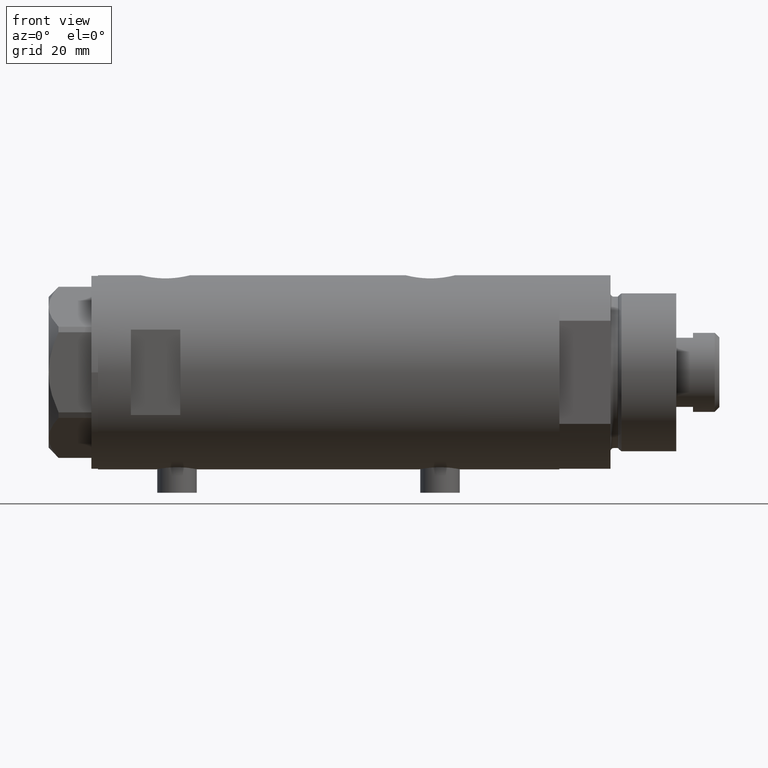
[diagram: clean part render]
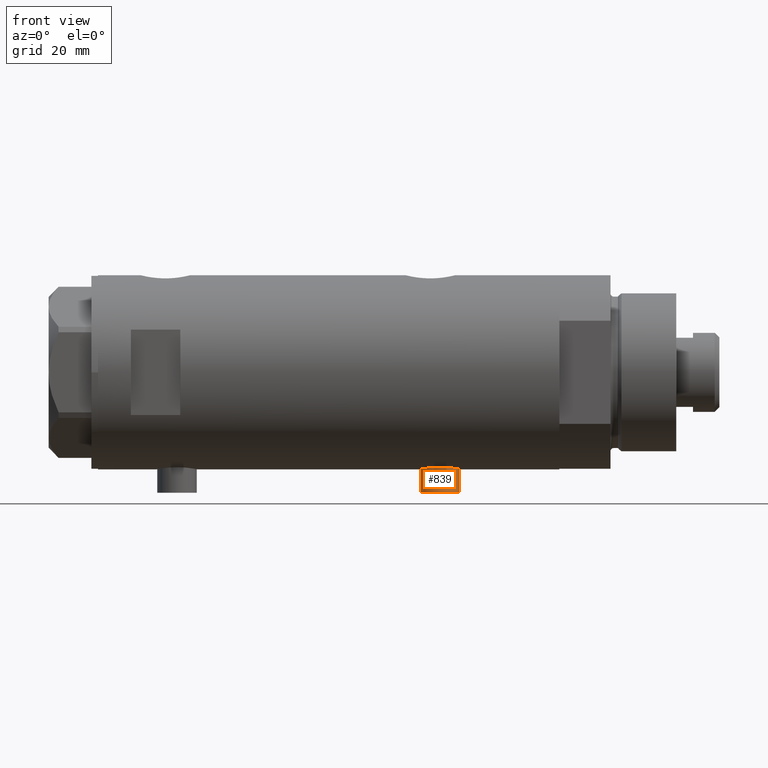
[diagram: same view with one face highlighted and labeled with its STEP entity id]
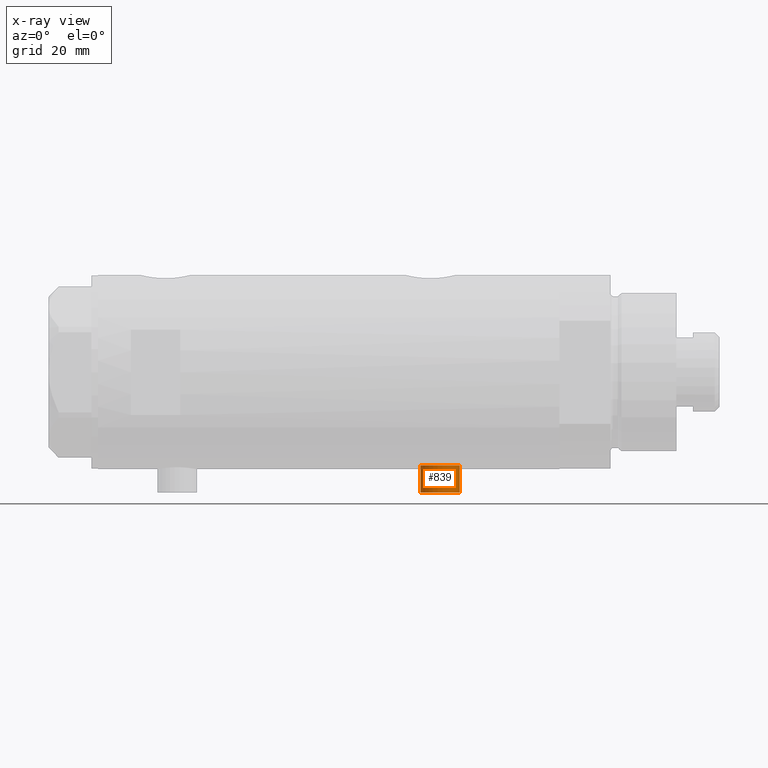
[diagram: x-ray of the same camera — body ghosted, the highlighted face saturated]
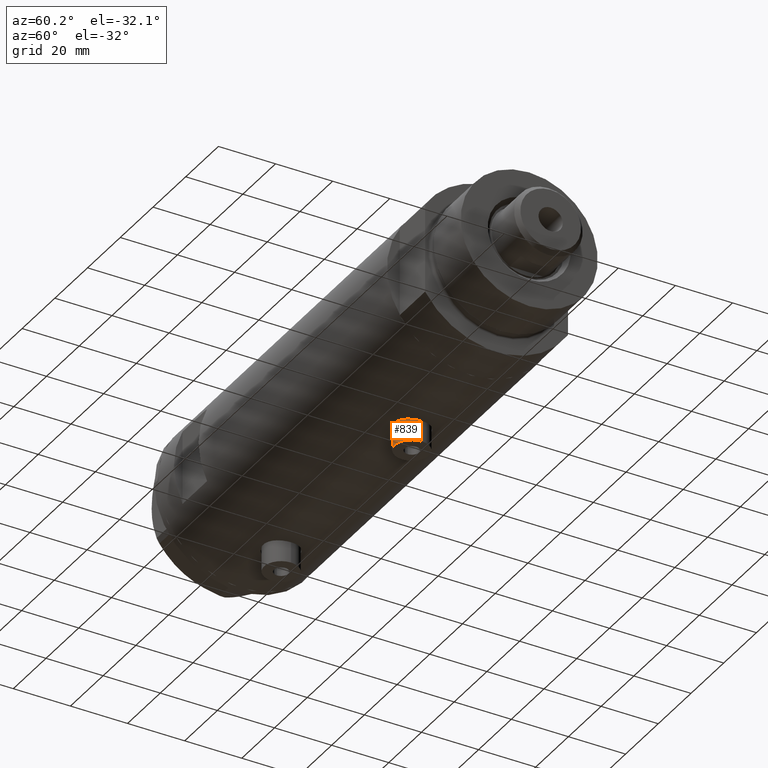
[diagram: same view with one face highlighted and labeled with its STEP entity id]
A machine part, front view. The second image highlights one B-rep face of the part: STEP entity #839.
The next image is the same camera in x-ray: the body ghosted, the highlighted face saturated — about 0% of this face is hidden behind the body in this view.
A second angle (auxiliary view) of the same face is appended — the face is thin or edge-on in the first view.
In plain terms, the highlighted cylindrical surface (edge-blend (fillet) strip) has radius 6 mm, axis along (0, 0, 1).
Its self-contained STEP definition (entity closure, byte-faithful):
#24 = CIRCLE ( 'NONE', #3680, 6.000000000000001776 ) ;
#300 = EDGE_CURVE ( 'NONE', #1791, #3214, #2681, .T. ) ;
#328 = EDGE_CURVE ( 'NONE', #4648, #2008, #24, .T. ) ;
#378 = DIRECTION ( 'NONE',  ( -1.000000000000000000, 0.000000000000000000, 0.000000000000000000 ) ) ;
#388 = EDGE_CURVE ( 'NONE', #1791, #4648, #1474, .T. ) ;
#399 = CARTESIAN_POINT ( 'NONE',  ( -36.60000000000000142, 0.000000000000000000, -33.79999999999999716 ) ) ;
#420 = CARTESIAN_POINT ( 'NONE',  ( -36.60000000000000142, 7.347880794884121708E-16, -27.79999999999999361 ) ) ;
#657 = AXIS2_PLACEMENT_3D ( 'NONE', #3847, #3045, #4508 ) ;
#839 = ADVANCED_FACE ( 'NONE', ( #1954 ), #1561, .T. ) ;
#1041 = VECTOR ( 'NONE', #2597, 1000.000000000000000 ) ;
#1105 = CARTESIAN_POINT ( 'NONE',  ( -36.60000000000000142, 0.000000000000000000, -39.80000000000000426 ) ) ;
#1474 = LINE ( 'NONE', #1105, #1041 ) ;
#1494 = DIRECTION ( 'NONE',  ( 0.000000000000000000, 0.000000000000000000, 1.000000000000000000 ) ) ;
#1561 = CYLINDRICAL_SURFACE ( 'NONE', #657, 6.000000000000005329 ) ;
#1791 = VERTEX_POINT ( 'NONE', #3477 ) ;
#1954 = FACE_OUTER_BOUND ( 'NONE', #3726, .T. ) ;
#2008 = VERTEX_POINT ( 'NONE', #3523 ) ;
#2290 = AXIS2_PLACEMENT_3D ( 'NONE', #399, #4045, #2555 ) ;
#2555 = DIRECTION ( 'NONE',  ( 0.000000000000000000, 0.000000000000000000, 1.000000000000000000 ) ) ;
#2597 = DIRECTION ( 'NONE',  ( 1.000000000000000000, -0.000000000000000000, -0.000000000000000000 ) ) ;
#2645 = DIRECTION ( 'NONE',  ( 1.000000000000000000, -0.000000000000000000, -0.000000000000000000 ) ) ;
#2681 = CIRCLE ( 'NONE', #2290, 6.000000000000001776 ) ;
#3045 = DIRECTION ( 'NONE',  ( 1.000000000000000000, -0.000000000000000000, -0.000000000000000000 ) ) ;
#3067 = ORIENTED_EDGE ( 'NONE', *, *, #300, .F. ) ;
#3214 = VERTEX_POINT ( 'NONE', #4386 ) ;
#3361 = LINE ( 'NONE', #420, #4383 ) ;
#3412 = ORIENTED_EDGE ( 'NONE', *, *, #388, .T. ) ;
#3477 = CARTESIAN_POINT ( 'NONE',  ( -36.60000000000000142, 0.000000000000000000, -39.80000000000000426 ) ) ;
#3523 = CARTESIAN_POINT ( 'NONE',  ( -28.30000000000000071, 7.347880794884123680E-16, -27.79999999999999005 ) ) ;
#3668 = ORIENTED_EDGE ( 'NONE', *, *, #328, .T. ) ;
#3680 = AXIS2_PLACEMENT_3D ( 'NONE', #3713, #378, #1494 ) ;
#3713 = CARTESIAN_POINT ( 'NONE',  ( -28.30000000000000071, 0.000000000000000000, -33.79999999999999716 ) ) ;
#3726 = EDGE_LOOP ( 'NONE', ( #3897, #3067, #3412, #3668 ) ) ;
#3734 = EDGE_CURVE ( 'NONE', #3214, #2008, #3361, .T. ) ;
#3771 = CARTESIAN_POINT ( 'NONE',  ( -28.30000000000000071, 0.000000000000000000, -39.80000000000000426 ) ) ;
#3847 = CARTESIAN_POINT ( 'NONE',  ( -36.60000000000000142, 0.000000000000000000, -33.79999999999999716 ) ) ;
#3897 = ORIENTED_EDGE ( 'NONE', *, *, #3734, .F. ) ;
#4045 = DIRECTION ( 'NONE',  ( -1.000000000000000000, 0.000000000000000000, 0.000000000000000000 ) ) ;
#4383 = VECTOR ( 'NONE', #2645, 1000.000000000000000 ) ;
#4386 = CARTESIAN_POINT ( 'NONE',  ( -36.60000000000000142, 7.347880794884123680E-16, -27.79999999999999005 ) ) ;
#4508 = DIRECTION ( 'NONE',  ( 0.000000000000000000, 0.000000000000000000, -1.000000000000000000 ) ) ;
#4648 = VERTEX_POINT ( 'NONE', #3771 ) ;